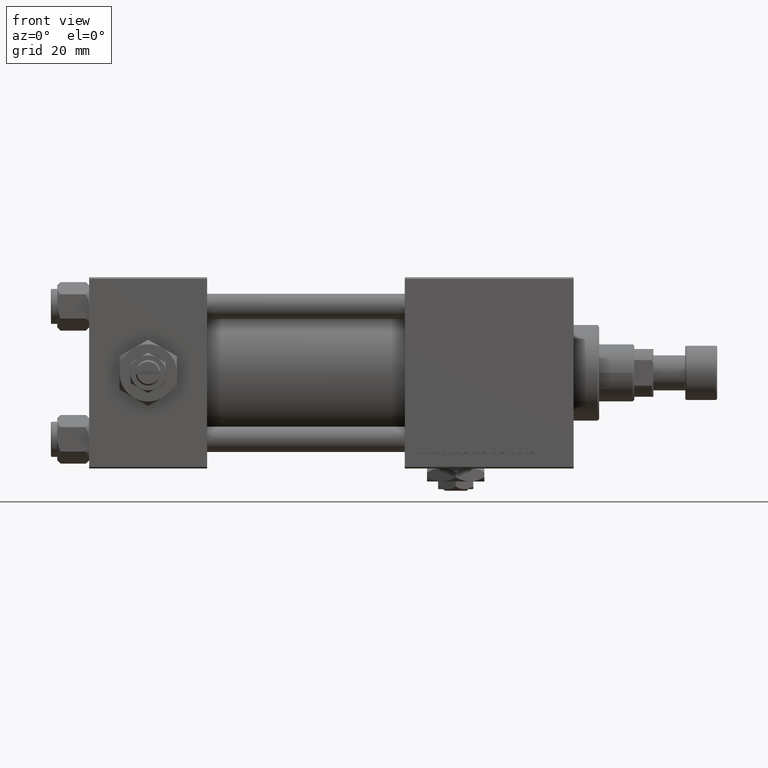
[diagram: clean part render]
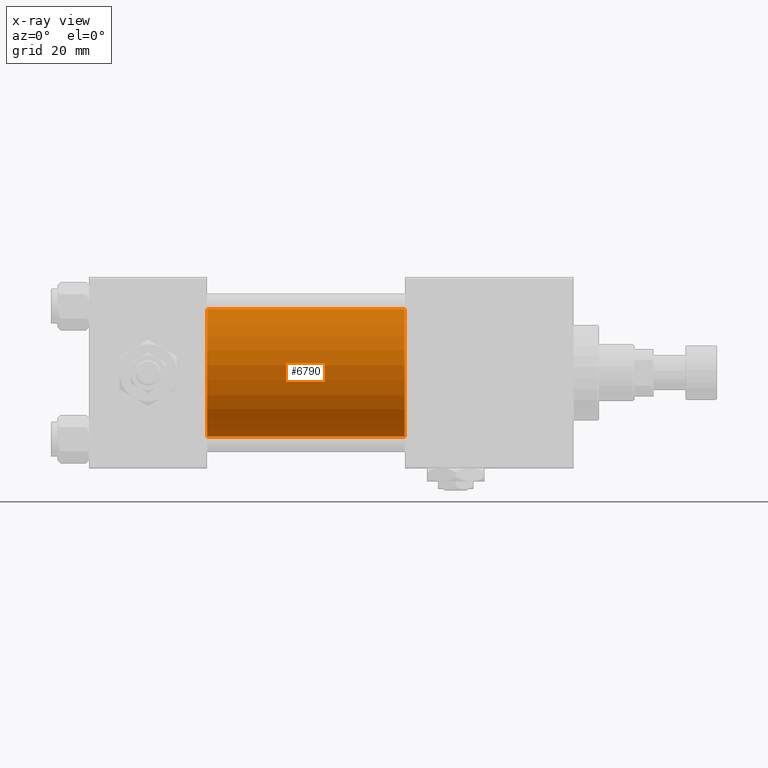
[diagram: x-ray — body ghosted, one internal face saturated and labeled with its STEP entity id]
A machine part, front view, then the same camera in x-ray: the body is ghosted and one INTERNAL B-rep face — a face not visible from any outside direction — is saturated and labeled: STEP entity #6790.
In plain terms, the highlighted cylindrical surface (partial cylindrical patch) has radius 20 mm, axis along (-1, -0, -0).
Its self-contained STEP definition (entity closure, byte-faithful):
#1332 = EDGE_CURVE ( 'NONE', #13961, #17845, #45324, .T. ) ;
#3318 = DIRECTION ( 'NONE',  ( 1.000000000000000000, 0.000000000000000000, 0.000000000000000000 ) ) ;
#3651 = AXIS2_PLACEMENT_3D ( 'NONE', #39758, #3318, #19546 ) ;
#6790 = ADVANCED_FACE ( 'NONE', ( #11781 ), #19766, .F. ) ;
#7968 = CARTESIAN_POINT ( 'NONE',  ( 99.00000000000000000, -2.602085213965210642E-15, 20.00000000000000000 ) ) ;
#11781 = FACE_OUTER_BOUND ( 'NONE', #20190, .T. ) ;
#12265 = CARTESIAN_POINT ( 'NONE',  ( 99.00000000000000000, -2.602085213965210642E-15, 0.000000000000000000 ) ) ;
#13912 = VECTOR ( 'NONE', #41078, 1000.000000000000000 ) ;
#13961 = VERTEX_POINT ( 'NONE', #43750 ) ;
#15250 = CARTESIAN_POINT ( 'NONE',  ( 99.00000000000000000, -2.602085213965210642E-15, 20.00000000000000000 ) ) ;
#15452 = CARTESIAN_POINT ( 'NONE',  ( 37.00000000000000000, -2.602085213965210642E-15, 20.00000000000000000 ) ) ;
#15945 = LINE ( 'NONE', #7968, #23461 ) ;
#17845 = VERTEX_POINT ( 'NONE', #42862 ) ;
#18944 = CIRCLE ( 'NONE', #3651, 20.00000000000000000 ) ;
#19546 = DIRECTION ( 'NONE',  ( 0.000000000000000000, 0.000000000000000000, -1.000000000000000000 ) ) ;
#19766 = CYLINDRICAL_SURFACE ( 'NONE', #52243, 20.00000000000000000 ) ;
#20190 = EDGE_LOOP ( 'NONE', ( #27056, #28192, #23716, #29130 ) ) ;
#20530 = EDGE_CURVE ( 'NONE', #32946, #25464, #15945, .T. ) ;
#23461 = VECTOR ( 'NONE', #32690, 1000.000000000000000 ) ;
#23716 = ORIENTED_EDGE ( 'NONE', *, *, #51070, .F. ) ;
#24246 = DIRECTION ( 'NONE',  ( 0.000000000000000000, 0.000000000000000000, -1.000000000000000000 ) ) ;
#24284 = DIRECTION ( 'NONE',  ( 0.000000000000000000, 0.000000000000000000, 1.000000000000000000 ) ) ;
#25464 = VERTEX_POINT ( 'NONE', #15452 ) ;
#27056 = ORIENTED_EDGE ( 'NONE', *, *, #28879, .T. ) ;
#28192 = ORIENTED_EDGE ( 'NONE', *, *, #1332, .T. ) ;
#28675 = AXIS2_PLACEMENT_3D ( 'NONE', #12265, #44454, #24246 ) ;
#28879 = EDGE_CURVE ( 'NONE', #32946, #13961, #51624, .T. ) ;
#29130 = ORIENTED_EDGE ( 'NONE', *, *, #20530, .F. ) ;
#32690 = DIRECTION ( 'NONE',  ( -1.000000000000000000, -0.000000000000000000, -0.000000000000000000 ) ) ;
#32946 = VERTEX_POINT ( 'NONE', #15250 ) ;
#35456 = CARTESIAN_POINT ( 'NONE',  ( 99.00000000000000000, -2.602085213965210642E-15, 0.000000000000000000 ) ) ;
#36512 = DIRECTION ( 'NONE',  ( -1.000000000000000000, -0.000000000000000000, -0.000000000000000000 ) ) ;
#39758 = CARTESIAN_POINT ( 'NONE',  ( 37.00000000000000000, -2.602085213965210642E-15, 0.000000000000000000 ) ) ;
#41078 = DIRECTION ( 'NONE',  ( -1.000000000000000000, -0.000000000000000000, -0.000000000000000000 ) ) ;
#41595 = CARTESIAN_POINT ( 'NONE',  ( 99.00000000000000000, -1.527916156705042519E-16, -20.00000000000000000 ) ) ;
#42862 = CARTESIAN_POINT ( 'NONE',  ( 37.00000000000000000, -1.527916156705042519E-16, -20.00000000000000000 ) ) ;
#43750 = CARTESIAN_POINT ( 'NONE',  ( 99.00000000000000000, -1.527916156705042519E-16, -20.00000000000000000 ) ) ;
#44454 = DIRECTION ( 'NONE',  ( 1.000000000000000000, 0.000000000000000000, 0.000000000000000000 ) ) ;
#45324 = LINE ( 'NONE', #41595, #13912 ) ;
#51070 = EDGE_CURVE ( 'NONE', #25464, #17845, #18944, .T. ) ;
#51624 = CIRCLE ( 'NONE', #28675, 20.00000000000000000 ) ;
#52243 = AXIS2_PLACEMENT_3D ( 'NONE', #35456, #36512, #24284 ) ;